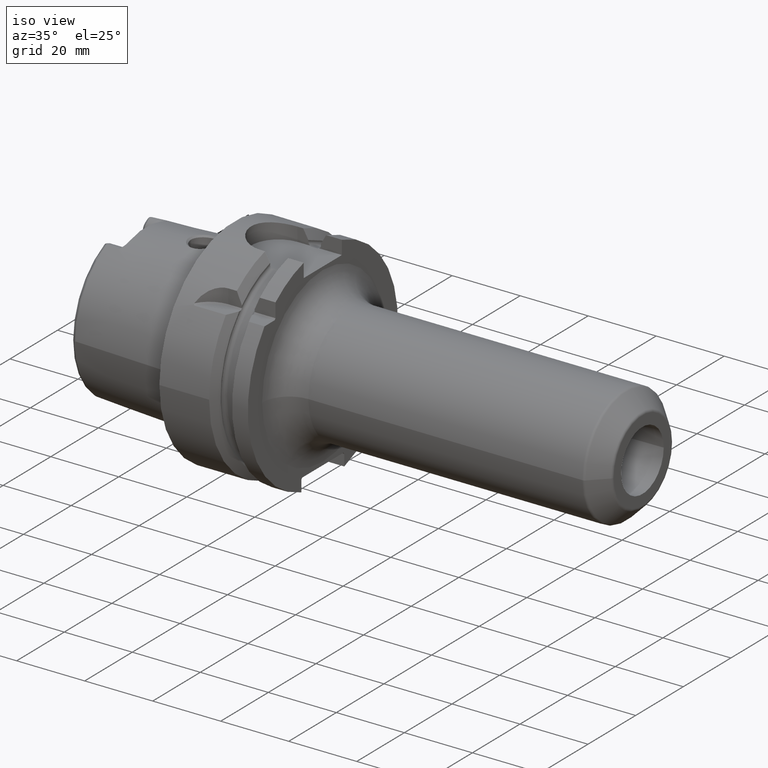
[diagram: clean part render]
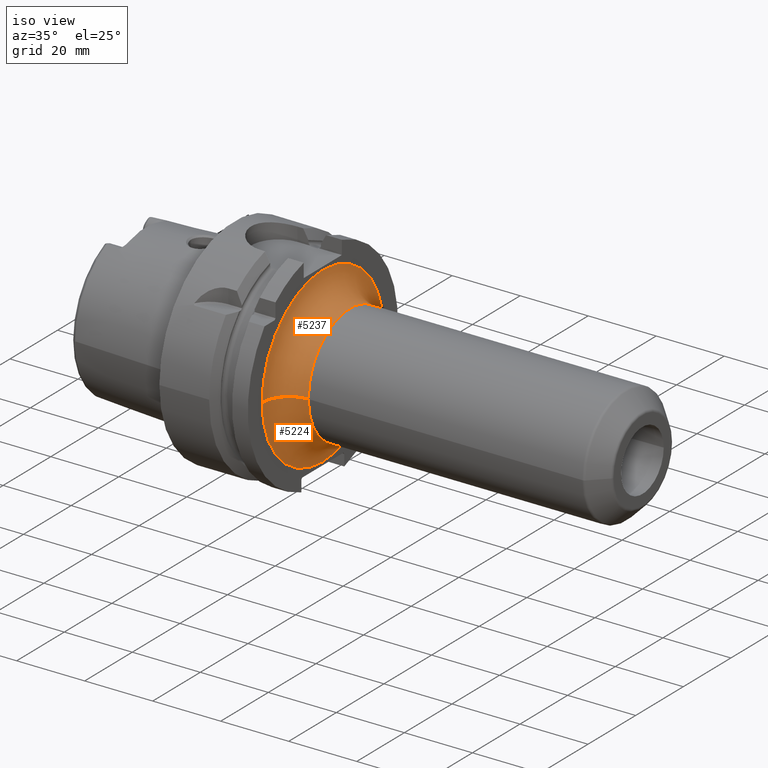
[diagram: same view with one multi-face feature highlighted, each face labeled with its STEP entity id]
A machine part, iso view. The highlighted faces form ONE feature: a constant-radius fillet chain: 2 tangent blend faces with common blend radius 8 mm. The faces share edges in the B-rep.
Their STEP definitions:
[1] entity #5224 (Torus):
#1708=CARTESIAN_POINT('',(2.6E1,0.E0,0.E0));
#1709=DIRECTION('',(1.E0,0.E0,0.E0));
#1710=DIRECTION('',(0.E0,-1.E0,0.E0));
#1711=AXIS2_PLACEMENT_3D('',#1708,#1709,#1710);
#1956=CARTESIAN_POINT('',(3.4E1,-2.55E1,2.078337502098E-13));
#1957=DIRECTION('',(0.E0,0.E0,-1.E0));
#1958=DIRECTION('',(-1.E0,0.E0,0.E0));
#1959=AXIS2_PLACEMENT_3D('',#1956,#1957,#1958);
#1961=CARTESIAN_POINT('',(3.4E1,2.55E1,-2.113864638886E-13));
#1962=DIRECTION('',(0.E0,0.E0,1.E0));
#1963=DIRECTION('',(-1.E0,0.E0,0.E0));
#1964=AXIS2_PLACEMENT_3D('',#1961,#1962,#1963);
#1995=CARTESIAN_POINT('',(3.4E1,0.E0,0.E0));
#1996=DIRECTION('',(1.E0,0.E0,0.E0));
#1997=DIRECTION('',(0.E0,-1.E0,0.E0));
#1998=AXIS2_PLACEMENT_3D('',#1995,#1996,#1997);
#3094=CARTESIAN_POINT('',(2.6E1,-2.55E1,0.E0));
#3095=CARTESIAN_POINT('',(2.6E1,2.55E1,0.E0));
#3096=VERTEX_POINT('',#3094);
#3097=VERTEX_POINT('',#3095);
#3098=CARTESIAN_POINT('',(3.4E1,-1.75E1,0.E0));
#3099=CARTESIAN_POINT('',(3.4E1,1.75E1,0.E0));
#3100=VERTEX_POINT('',#3098);
#3101=VERTEX_POINT('',#3099);
#5210=CARTESIAN_POINT('',(3.4E1,0.E0,0.E0));
#5211=DIRECTION('',(1.E0,0.E0,0.E0));
#5212=DIRECTION('',(0.E0,-9.999903491593E-1,4.393357295320E-3));
#5213=AXIS2_PLACEMENT_3D('',#5210,#5211,#5212);
#5214=TOROIDAL_SURFACE('',#5213,2.55E1,8.E0);
#5215=ORIENTED_EDGE('',*,*,#4917,.F.);
#5217=ORIENTED_EDGE('',*,*,#5216,.T.);
#5219=ORIENTED_EDGE('',*,*,#5218,.T.);
#5221=ORIENTED_EDGE('',*,*,#5220,.F.);
#5222=EDGE_LOOP('',(#5215,#5217,#5219,#5221));
#5223=FACE_OUTER_BOUND('',#5222,.F.);
#5224=ADVANCED_FACE('',(#5223),#5214,.F.);
#1712=CIRCLE('',#1711,2.55E1);
#1960=CIRCLE('',#1959,8.E0);
#1965=CIRCLE('',#1964,8.E0);
#1999=CIRCLE('',#1998,1.75E1);
#4917=EDGE_CURVE('',#3096,#3097,#1712,.T.);
#5216=EDGE_CURVE('',#3096,#3100,#1960,.T.);
#5218=EDGE_CURVE('',#3100,#3101,#1999,.T.);
#5220=EDGE_CURVE('',#3097,#3101,#1965,.T.);
[2] entity #5237 (Torus):
#1713=CARTESIAN_POINT('',(2.6E1,0.E0,0.E0));
#1714=DIRECTION('',(1.E0,0.E0,0.E0));
#1715=DIRECTION('',(0.E0,1.E0,0.E0));
#1716=AXIS2_PLACEMENT_3D('',#1713,#1714,#1715);
#1956=CARTESIAN_POINT('',(3.4E1,-2.55E1,2.078337502098E-13));
#1957=DIRECTION('',(0.E0,0.E0,-1.E0));
#1958=DIRECTION('',(-1.E0,0.E0,0.E0));
#1959=AXIS2_PLACEMENT_3D('',#1956,#1957,#1958);
#1961=CARTESIAN_POINT('',(3.4E1,2.55E1,-2.113864638886E-13));
#1962=DIRECTION('',(0.E0,0.E0,1.E0));
#1963=DIRECTION('',(-1.E0,0.E0,0.E0));
#1964=AXIS2_PLACEMENT_3D('',#1961,#1962,#1963);
#1971=CARTESIAN_POINT('',(3.4E1,0.E0,0.E0));
#1972=DIRECTION('',(1.E0,0.E0,0.E0));
#1973=DIRECTION('',(0.E0,1.E0,0.E0));
#1974=AXIS2_PLACEMENT_3D('',#1971,#1972,#1973);
#3094=CARTESIAN_POINT('',(2.6E1,-2.55E1,0.E0));
#3095=CARTESIAN_POINT('',(2.6E1,2.55E1,0.E0));
#3096=VERTEX_POINT('',#3094);
#3097=VERTEX_POINT('',#3095);
#3098=CARTESIAN_POINT('',(3.4E1,-1.75E1,0.E0));
#3099=CARTESIAN_POINT('',(3.4E1,1.75E1,0.E0));
#3100=VERTEX_POINT('',#3098);
#3101=VERTEX_POINT('',#3099);
#5225=CARTESIAN_POINT('',(3.4E1,0.E0,0.E0));
#5226=DIRECTION('',(1.E0,0.E0,0.E0));
#5227=DIRECTION('',(0.E0,9.999903491593E-1,-4.393357295319E-3));
#5228=AXIS2_PLACEMENT_3D('',#5225,#5226,#5227);
#5229=TOROIDAL_SURFACE('',#5228,2.55E1,8.E0);
#5230=ORIENTED_EDGE('',*,*,#4919,.F.);
#5231=ORIENTED_EDGE('',*,*,#5220,.T.);
#5233=ORIENTED_EDGE('',*,*,#5232,.T.);
#5234=ORIENTED_EDGE('',*,*,#5216,.F.);
#5235=EDGE_LOOP('',(#5230,#5231,#5233,#5234));
#5236=FACE_OUTER_BOUND('',#5235,.F.);
#5237=ADVANCED_FACE('',(#5236),#5229,.F.);
#1717=CIRCLE('',#1716,2.55E1);
#1960=CIRCLE('',#1959,8.E0);
#1965=CIRCLE('',#1964,8.E0);
#1975=CIRCLE('',#1974,1.75E1);
#4919=EDGE_CURVE('',#3097,#3096,#1717,.T.);
#5216=EDGE_CURVE('',#3096,#3100,#1960,.T.);
#5220=EDGE_CURVE('',#3097,#3101,#1965,.T.);
#5232=EDGE_CURVE('',#3101,#3100,#1975,.T.);